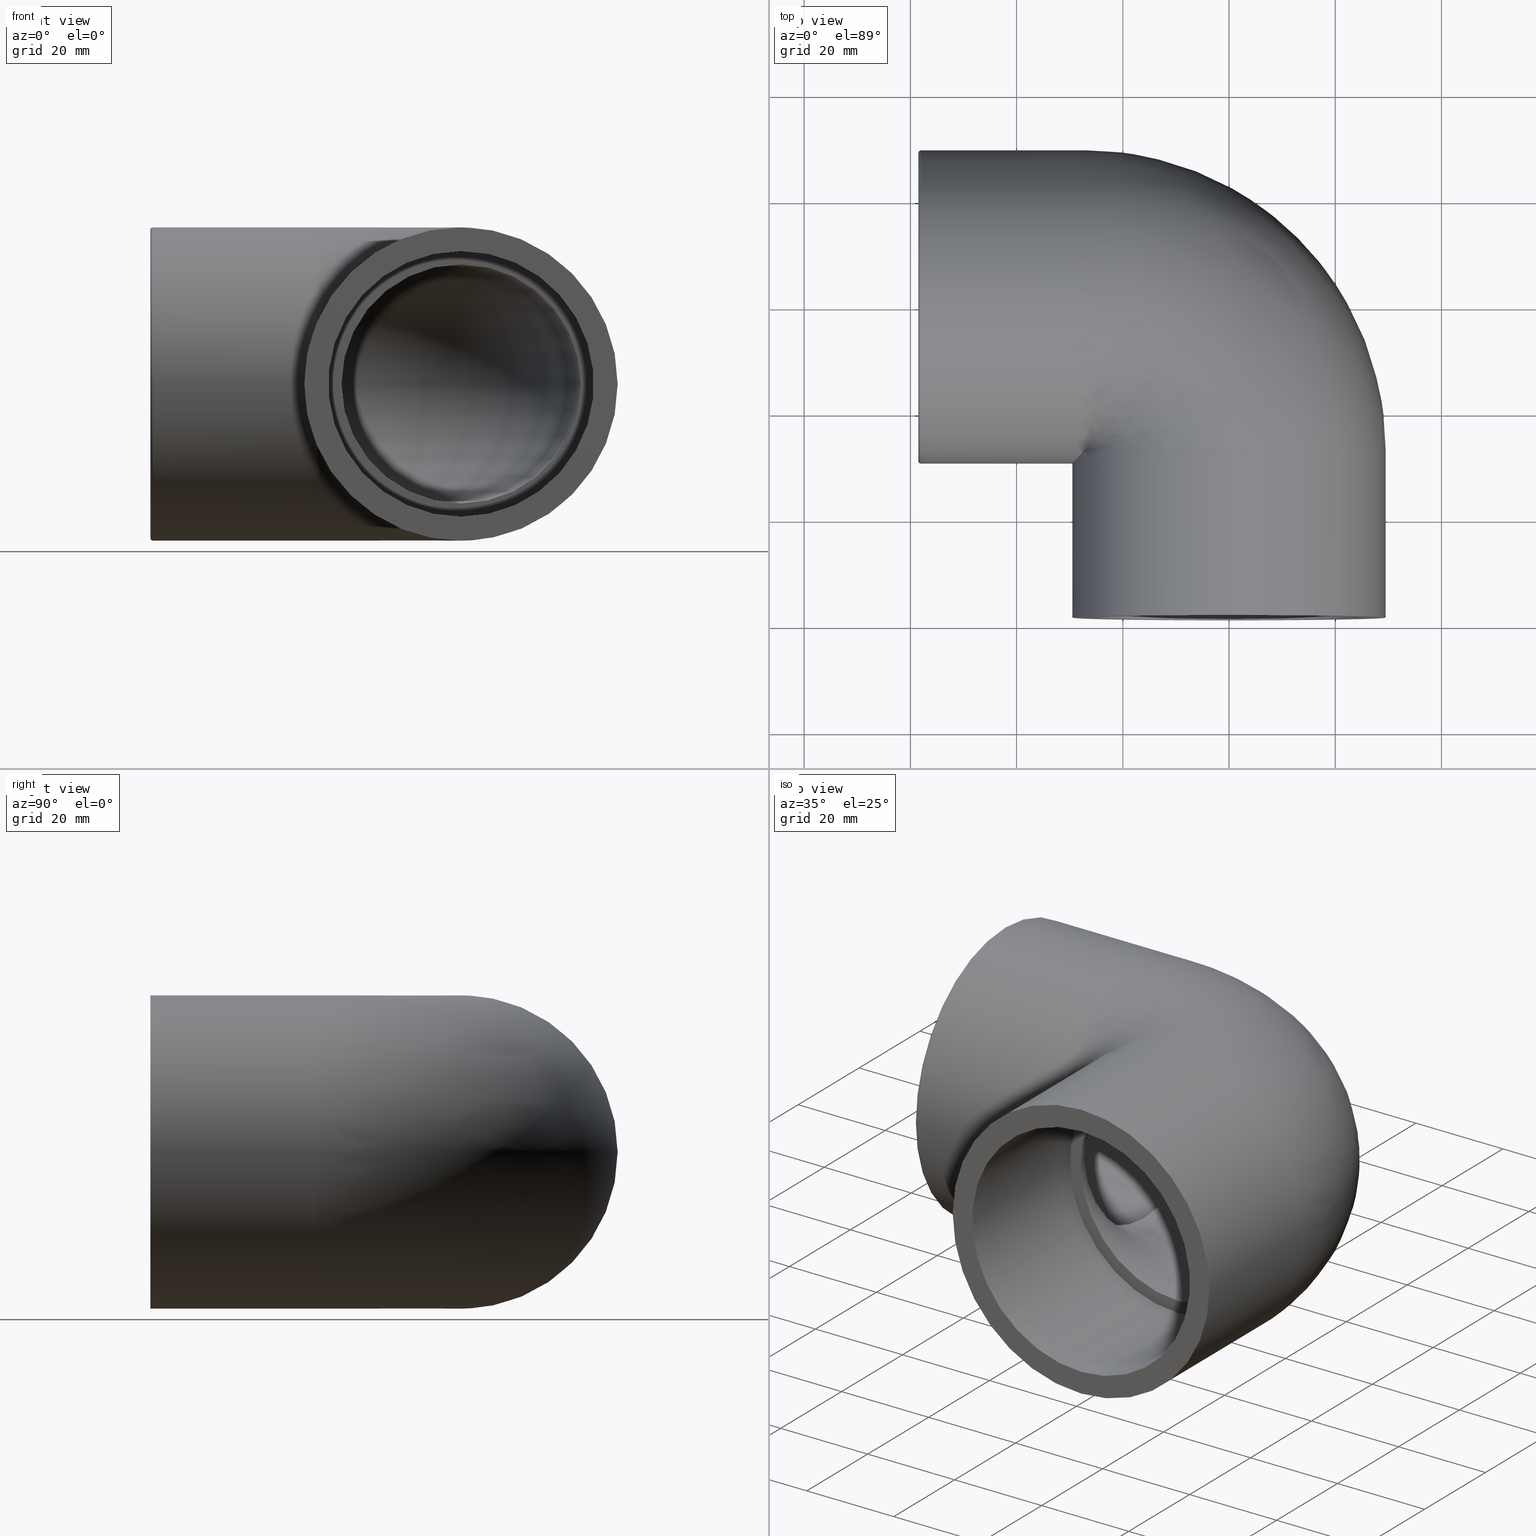
[diagram: canonical four-view strip — front | top / right | iso, engineering-drawing reading convention]
A machine part, canonical four-view strip (front | top / right | iso — engineering-drawing reading convention). The complete STEP part file that produces these views, byte-faithful:
ISO-10303-21;
HEADER;
/* Generated by software containing ST-Developer
 * from STEP Tools, Inc. (www.steptools.com) 
 */

FILE_DESCRIPTION(
/* description */ ('PLASSON 90\X\B0 ELBOW-CEMENT PVC 50'),
/* implementation_level */ '2;1');

FILE_NAME(
/* name */ 
'C:\\Dropbox\\KIMPROJECTS-Inventor\\99-16-3568-Processing\\PVC Catalog
 2017\\050500\\050500050.ipt.stp',
/* time_stamp */ '2017-12-07T15:55:38+02:00',
/* author */ ('KIM'),
/* organization */ (''),
/* preprocessor_version */ 'ST-DEVELOPER v15.6',
/* originating_system */ 'Autodesk Inventor 2015',
/* authorisation */ '');

FILE_SCHEMA (('AUTOMOTIVE_DESIGN { 1 0 10303 214 3 1 1 }'));
ENDSEC;

DATA;
#10=MECHANICAL_DESIGN_GEOMETRIC_PRESENTATION_REPRESENTATION('',(#13),#272);
#11=SHAPE_REPRESENTATION_RELATIONSHIP('SRR','None',#281,#12);
#12=ADVANCED_BREP_SHAPE_REPRESENTATION($,(#14),#271);
#13=STYLED_ITEM('',(#290),#14);
#14=MANIFOLD_SOLID_BREP('Solid1',#138);
#15=ELLIPSE('',#154,41.7193000900063,29.5);
#16=(
BOUNDED_SURFACE()
B_SPLINE_SURFACE(2,2,((#226,#227,#228),(#229,#230,#231),(#232,#233,#234),
(#235,#236,#237),(#238,#239,#240),(#241,#242,#243),(#244,#245,#246),(#247,
#248,#249),(#250,#251,#252)),.UNSPECIFIED.,.F.,.F.,.F.)
B_SPLINE_SURFACE_WITH_KNOTS((3,2,2,2,3),(3,3),(-2.72693485056769,-1.36346742528384,
0.,1.36346742528384,2.72693485056769),(1.5707963267949,3.14159265358979),
 .UNSPECIFIED.)
GEOMETRIC_REPRESENTATION_ITEM()
RATIONAL_B_SPLINE_SURFACE(((1.,0.707106781186548,1.),(0.776481404284146,
0.549055266434573,0.776481404284146),(1.,0.707106781186548,1.),(0.776481404284144,
0.549055266434571,0.776481404284144),(1.,0.707106781186548,1.),(0.776481404284144,
0.549055266434571,0.776481404284144),(1.,0.707106781186548,1.),(0.776481404284146,
0.549055266434573,0.776481404284146),(1.,0.707106781186548,1.)))
REPRESENTATION_ITEM('')
SURFACE()
);
#17=PLANE('',#146);
#18=PLANE('',#150);
#19=PLANE('',#156);
#20=PLANE('',#160);
#21=CYLINDRICAL_SURFACE('',#143,25.);
#22=CYLINDRICAL_SURFACE('',#147,25.);
#23=CYLINDRICAL_SURFACE('',#153,29.5);
#24=CYLINDRICAL_SURFACE('',#161,29.5);
#25=FACE_BOUND('',#47,.T.);
#26=FACE_BOUND('',#49,.T.);
#27=FACE_BOUND('',#51,.T.);
#28=FACE_BOUND('',#53,.T.);
#29=FACE_BOUND('',#55,.T.);
#30=FACE_BOUND('',#58,.T.);
#31=FACE_BOUND('',#60,.T.);
#32=FACE_BOUND('',#62,.T.);
#33=FACE_BOUND('',#64,.T.);
#34=FACE_BOUND('',#66,.T.);
#35=FACE_OUTER_BOUND('',#46,.T.);
#36=FACE_OUTER_BOUND('',#48,.T.);
#37=FACE_OUTER_BOUND('',#50,.T.);
#38=FACE_OUTER_BOUND('',#52,.T.);
#39=FACE_OUTER_BOUND('',#54,.T.);
#40=FACE_OUTER_BOUND('',#56,.T.);
#41=FACE_OUTER_BOUND('',#57,.T.);
#42=FACE_OUTER_BOUND('',#59,.T.);
#43=FACE_OUTER_BOUND('',#61,.T.);
#44=FACE_OUTER_BOUND('',#63,.T.);
#45=FACE_OUTER_BOUND('',#65,.T.);
#46=EDGE_LOOP('',(#101));
#47=EDGE_LOOP('',(#102));
#48=EDGE_LOOP('',(#103));
#49=EDGE_LOOP('',(#104));
#50=EDGE_LOOP('',(#105));
#51=EDGE_LOOP('',(#106));
#52=EDGE_LOOP('',(#107));
#53=EDGE_LOOP('',(#108));
#54=EDGE_LOOP('',(#109));
#55=EDGE_LOOP('',(#110));
#56=EDGE_LOOP('',(#111,#112));
#57=EDGE_LOOP('',(#113,#114));
#58=EDGE_LOOP('',(#115));
#59=EDGE_LOOP('',(#116));
#60=EDGE_LOOP('',(#117));
#61=EDGE_LOOP('',(#118));
#62=EDGE_LOOP('',(#119));
#63=EDGE_LOOP('',(#120));
#64=EDGE_LOOP('',(#121));
#65=EDGE_LOOP('',(#122,#123));
#66=EDGE_LOOP('',(#124));
#67=CIRCLE('',#141,22.5);
#68=CIRCLE('',#142,22.5);
#69=CIRCLE('',#144,25.);
#70=CIRCLE('',#145,25.);
#71=CIRCLE('',#148,25.);
#72=CIRCLE('',#149,25.);
#73=CIRCLE('',#151,29.5);
#74=CIRCLE('',#152,29.5);
#75=CIRCLE('',#155,29.5);
#76=CIRCLE('',#158,29.);
#77=CIRCLE('',#159,29.5);
#78=VERTEX_POINT('',#210);
#79=VERTEX_POINT('',#212);
#80=VERTEX_POINT('',#215);
#81=VERTEX_POINT('',#217);
#82=VERTEX_POINT('',#221);
#83=VERTEX_POINT('',#223);
#84=VERTEX_POINT('',#253);
#85=VERTEX_POINT('',#254);
#86=VERTEX_POINT('',#259);
#87=VERTEX_POINT('',#263);
#88=VERTEX_POINT('',#265);
#89=EDGE_CURVE('',#78,#78,#67,.T.);
#90=EDGE_CURVE('',#79,#79,#68,.T.);
#91=EDGE_CURVE('',#80,#80,#69,.T.);
#92=EDGE_CURVE('',#81,#81,#70,.T.);
#93=EDGE_CURVE('',#82,#82,#71,.T.);
#94=EDGE_CURVE('',#83,#83,#72,.T.);
#95=EDGE_CURVE('',#84,#85,#73,.T.);
#96=EDGE_CURVE('',#85,#84,#74,.T.);
#97=EDGE_CURVE('',#84,#85,#15,.T.);
#98=EDGE_CURVE('',#86,#86,#75,.T.);
#99=EDGE_CURVE('',#87,#87,#76,.T.);
#100=EDGE_CURVE('',#88,#88,#77,.T.);
#101=ORIENTED_EDGE('',*,*,#89,.F.);
#102=ORIENTED_EDGE('',*,*,#90,.F.);
#103=ORIENTED_EDGE('',*,*,#91,.T.);
#104=ORIENTED_EDGE('',*,*,#92,.F.);
#105=ORIENTED_EDGE('',*,*,#91,.F.);
#106=ORIENTED_EDGE('',*,*,#89,.T.);
#107=ORIENTED_EDGE('',*,*,#93,.T.);
#108=ORIENTED_EDGE('',*,*,#94,.F.);
#109=ORIENTED_EDGE('',*,*,#93,.F.);
#110=ORIENTED_EDGE('',*,*,#90,.T.);
#111=ORIENTED_EDGE('',*,*,#95,.T.);
#112=ORIENTED_EDGE('',*,*,#96,.T.);
#113=ORIENTED_EDGE('',*,*,#97,.F.);
#114=ORIENTED_EDGE('',*,*,#96,.F.);
#115=ORIENTED_EDGE('',*,*,#98,.T.);
#116=ORIENTED_EDGE('',*,*,#98,.F.);
#117=ORIENTED_EDGE('',*,*,#92,.T.);
#118=ORIENTED_EDGE('',*,*,#99,.T.);
#119=ORIENTED_EDGE('',*,*,#100,.T.);
#120=ORIENTED_EDGE('',*,*,#99,.F.);
#121=ORIENTED_EDGE('',*,*,#94,.T.);
#122=ORIENTED_EDGE('',*,*,#97,.T.);
#123=ORIENTED_EDGE('',*,*,#95,.F.);
#124=ORIENTED_EDGE('',*,*,#100,.F.);
#125=TOROIDAL_SURFACE('',#140,26.5,22.5);
#126=TOROIDAL_SURFACE('',#157,29.,0.5);
#127=ADVANCED_FACE('',(#35,#25),#125,.F.);
#128=ADVANCED_FACE('',(#36,#26),#21,.F.);
#129=ADVANCED_FACE('',(#37,#27),#17,.F.);
#130=ADVANCED_FACE('',(#38,#28),#22,.F.);
#131=ADVANCED_FACE('',(#39,#29),#18,.F.);
#132=ADVANCED_FACE('',(#40),#16,.F.);
#133=ADVANCED_FACE('',(#41,#30),#23,.T.);
#134=ADVANCED_FACE('',(#42,#31),#19,.T.);
#135=ADVANCED_FACE('',(#43,#32),#126,.T.);
#136=ADVANCED_FACE('',(#44,#33),#20,.T.);
#137=ADVANCED_FACE('',(#45,#34),#24,.T.);
#138=CLOSED_SHELL('',(#127,#128,#129,#130,#131,#132,#133,#134,#135,#136,
#137));
#139=AXIS2_PLACEMENT_3D('placement',#208,#162,#163);
#140=AXIS2_PLACEMENT_3D('',#209,#164,#165);
#141=AXIS2_PLACEMENT_3D('',#211,#166,#167);
#142=AXIS2_PLACEMENT_3D('',#213,#168,#169);
#143=AXIS2_PLACEMENT_3D('',#214,#170,#171);
#144=AXIS2_PLACEMENT_3D('',#216,#172,#173);
#145=AXIS2_PLACEMENT_3D('',#218,#174,#175);
#146=AXIS2_PLACEMENT_3D('',#219,#176,#177);
#147=AXIS2_PLACEMENT_3D('',#220,#178,#179);
#148=AXIS2_PLACEMENT_3D('',#222,#180,#181);
#149=AXIS2_PLACEMENT_3D('',#224,#182,#183);
#150=AXIS2_PLACEMENT_3D('',#225,#184,#185);
#151=AXIS2_PLACEMENT_3D('',#255,#186,#187);
#152=AXIS2_PLACEMENT_3D('',#256,#188,#189);
#153=AXIS2_PLACEMENT_3D('',#257,#190,#191);
#154=AXIS2_PLACEMENT_3D('',#258,#192,#193);
#155=AXIS2_PLACEMENT_3D('',#260,#194,#195);
#156=AXIS2_PLACEMENT_3D('',#261,#196,#197);
#157=AXIS2_PLACEMENT_3D('',#262,#198,#199);
#158=AXIS2_PLACEMENT_3D('',#264,#200,#201);
#159=AXIS2_PLACEMENT_3D('',#266,#202,#203);
#160=AXIS2_PLACEMENT_3D('',#267,#204,#205);
#161=AXIS2_PLACEMENT_3D('',#268,#206,#207);
#162=DIRECTION('axis',(0.,0.,1.));
#163=DIRECTION('refdir',(1.,0.,0.));
#164=DIRECTION('center_axis',(0.,0.,-1.));
#165=DIRECTION('ref_axis',(-1.,0.,0.));
#166=DIRECTION('center_axis',(6.12323399573677E-17,1.,0.));
#167=DIRECTION('ref_axis',(1.,-6.12323399573677E-17,0.));
#168=DIRECTION('center_axis',(1.,0.,0.));
#169=DIRECTION('ref_axis',(0.,1.,0.));
#170=DIRECTION('center_axis',(6.12323399573677E-17,1.,0.));
#171=DIRECTION('ref_axis',(0.,0.,-1.));
#172=DIRECTION('center_axis',(6.12323399573677E-17,1.,0.));
#173=DIRECTION('ref_axis',(0.,0.,-1.));
#174=DIRECTION('center_axis',(6.12323399573677E-17,1.,0.));
#175=DIRECTION('ref_axis',(0.,0.,-1.));
#176=DIRECTION('center_axis',(6.12323399573677E-17,1.,0.));
#177=DIRECTION('ref_axis',(0.,0.,-1.));
#178=DIRECTION('center_axis',(1.,0.,0.));
#179=DIRECTION('ref_axis',(0.,0.,-1.));
#180=DIRECTION('center_axis',(1.,0.,0.));
#181=DIRECTION('ref_axis',(0.,0.,-1.));
#182=DIRECTION('center_axis',(1.,0.,0.));
#183=DIRECTION('ref_axis',(0.,0.,-1.));
#184=DIRECTION('center_axis',(1.,0.,0.));
#185=DIRECTION('ref_axis',(0.,0.,-1.));
#186=DIRECTION('center_axis',(1.,0.,0.));
#187=DIRECTION('ref_axis',(0.,0.,-1.));
#188=DIRECTION('center_axis',(6.12323399573677E-17,1.,0.));
#189=DIRECTION('ref_axis',(0.,0.,-1.));
#190=DIRECTION('center_axis',(6.12323399573677E-17,1.,0.));
#191=DIRECTION('ref_axis',(-1.,6.12323399573677E-17,0.));
#192=DIRECTION('center_axis',(-0.707106781186548,0.707106781186548,0.));
#193=DIRECTION('ref_axis',(-0.707106781186548,-0.707106781186547,0.));
#194=DIRECTION('center_axis',(6.12323399573677E-17,1.,0.));
#195=DIRECTION('ref_axis',(0.,0.,-1.));
#196=DIRECTION('center_axis',(-6.12323399573677E-17,-1.,0.));
#197=DIRECTION('ref_axis',(0.,0.,1.));
#198=DIRECTION('center_axis',(1.,0.,0.));
#199=DIRECTION('ref_axis',(0.,0.,-1.));
#200=DIRECTION('center_axis',(1.,0.,0.));
#201=DIRECTION('ref_axis',(0.,-1.,1.83697019872103E-16));
#202=DIRECTION('center_axis',(-1.,0.,0.));
#203=DIRECTION('ref_axis',(0.,-1.,1.83697019872103E-16));
#204=DIRECTION('center_axis',(-1.,0.,0.));
#205=DIRECTION('ref_axis',(0.,0.,1.));
#206=DIRECTION('center_axis',(1.,0.,0.));
#207=DIRECTION('ref_axis',(0.,1.,0.));
#208=CARTESIAN_POINT('',(0.,0.,0.));
#209=CARTESIAN_POINT('Origin',(-26.5,-26.5,0.));
#210=CARTESIAN_POINT('',(2.22044604925031E-15,-26.5,22.5));
#211=CARTESIAN_POINT('Origin',(0.,-26.5,0.));
#212=CARTESIAN_POINT('',(-26.5,2.75545529808154E-15,22.5));
#213=CARTESIAN_POINT('Origin',(-26.5,0.,0.));
#214=CARTESIAN_POINT('Origin',(-3.58209188750601E-15,-58.5,0.));
#215=CARTESIAN_POINT('',(-4.68427400673863E-15,-26.5,25.));
#216=CARTESIAN_POINT('Origin',(-1.62265700887024E-15,-26.5,0.));
#217=CARTESIAN_POINT('',(-6.64370888537439E-15,-58.5,25.));
#218=CARTESIAN_POINT('Origin',(-3.58209188750601E-15,-58.5,0.));
#219=CARTESIAN_POINT('Origin',(-1.03053806240349E-15,-26.5,-1.43937264275587E-15));
#220=CARTESIAN_POINT('Origin',(-58.5,0.,0.));
#221=CARTESIAN_POINT('',(-26.5,3.06161699786838E-15,25.));
#222=CARTESIAN_POINT('Origin',(-26.5,0.,0.));
#223=CARTESIAN_POINT('',(-58.5,3.06161699786838E-15,25.));
#224=CARTESIAN_POINT('Origin',(-58.5,0.,0.));
#225=CARTESIAN_POINT('Origin',(-26.5,-5.9211894646675E-16,-1.43937264275587E-15));
#226=CARTESIAN_POINT('Ctrl Pts',(-27.,-27.,11.8848643240047));
#227=CARTESIAN_POINT('Ctrl Pts',(-27.,-27.,11.8848643240047));
#228=CARTESIAN_POINT('Ctrl Pts',(-27.,-27.,11.8848643240047));
#229=CARTESIAN_POINT('Ctrl Pts',(-27.,-17.3550421985089,33.7962512394013));
#230=CARTESIAN_POINT('Ctrl Pts',(-17.3550421985089,-17.3550421985089,33.7962512394013));
#231=CARTESIAN_POINT('Ctrl Pts',(-17.3550421985089,-27.,33.7962512394013));
#232=CARTESIAN_POINT('Ctrl Pts',(-27.,6.07247890074555,28.8682351382969));
#233=CARTESIAN_POINT('Ctrl Pts',(6.07247890074555,6.07247890074555,28.8682351382969));
#234=CARTESIAN_POINT('Ctrl Pts',(6.07247890074555,-27.,28.8682351382969));
#235=CARTESIAN_POINT('Ctrl Pts',(-27.,29.5,23.9402190371925));
#236=CARTESIAN_POINT('Ctrl Pts',(29.5,29.5,23.9402190371925));
#237=CARTESIAN_POINT('Ctrl Pts',(29.5,-27.,23.9402190371925));
#238=CARTESIAN_POINT('Ctrl Pts',(-27.,29.5,0.));
#239=CARTESIAN_POINT('Ctrl Pts',(29.5,29.5,0.));
#240=CARTESIAN_POINT('Ctrl Pts',(29.5,-27.,0.));
#241=CARTESIAN_POINT('Ctrl Pts',(-27.,29.5,-23.9402190371925));
#242=CARTESIAN_POINT('Ctrl Pts',(29.5,29.5,-23.9402190371925));
#243=CARTESIAN_POINT('Ctrl Pts',(29.5,-27.,-23.9402190371925));
#244=CARTESIAN_POINT('Ctrl Pts',(-27.,6.07247890074555,-28.8682351382969));
#245=CARTESIAN_POINT('Ctrl Pts',(6.07247890074555,6.07247890074555,-28.8682351382969));
#246=CARTESIAN_POINT('Ctrl Pts',(6.07247890074555,-27.,-28.8682351382969));
#247=CARTESIAN_POINT('Ctrl Pts',(-27.,-17.3550421985089,-33.7962512394013));
#248=CARTESIAN_POINT('Ctrl Pts',(-17.3550421985089,-17.3550421985089,-33.7962512394013));
#249=CARTESIAN_POINT('Ctrl Pts',(-17.3550421985089,-27.,-33.7962512394013));
#250=CARTESIAN_POINT('Ctrl Pts',(-27.,-27.,-11.8848643240047));
#251=CARTESIAN_POINT('Ctrl Pts',(-27.,-27.,-11.8848643240047));
#252=CARTESIAN_POINT('Ctrl Pts',(-27.,-27.,-11.8848643240047));
#253=CARTESIAN_POINT('',(-27.,-27.,-11.8848643240047));
#254=CARTESIAN_POINT('',(-27.,-27.,11.8848643240047));
#255=CARTESIAN_POINT('Origin',(-27.,0.,0.));
#256=CARTESIAN_POINT('Origin',(-1.65327317884893E-15,-27.,0.));
#257=CARTESIAN_POINT('Origin',(-2.61768253317747E-15,-42.75,0.));
#258=CARTESIAN_POINT('Origin',(0.,0.,0.));
#259=CARTESIAN_POINT('',(-29.5,-58.5,0.));
#260=CARTESIAN_POINT('Origin',(-3.58209188750601E-15,-58.5,0.));
#261=CARTESIAN_POINT('Origin',(-29.5,-58.5,0.));
#262=CARTESIAN_POINT('Origin',(-58.,0.,0.));
#263=CARTESIAN_POINT('',(-58.5,29.,-1.77573785876366E-15));
#264=CARTESIAN_POINT('Origin',(-58.5,0.,0.));
#265=CARTESIAN_POINT('',(-58.,29.5,-9.03177014371173E-15));
#266=CARTESIAN_POINT('Origin',(-58.,0.,0.));
#267=CARTESIAN_POINT('Origin',(-58.5,29.5,0.));
#268=CARTESIAN_POINT('Origin',(-42.75,0.,0.));
#269=UNCERTAINTY_MEASURE_WITH_UNIT(LENGTH_MEASURE(0.01),#273,
'DISTANCE_ACCURACY_VALUE',
'Maximum model space distance between geometric entities at asserted c
onnectivities');
#270=UNCERTAINTY_MEASURE_WITH_UNIT(LENGTH_MEASURE(1.E-6),#273,
'DISTANCE_ACCURACY_VALUE',
'Maximum model space distance between geometric entities at asserted c
onnectivities');
#271=(
GEOMETRIC_REPRESENTATION_CONTEXT(3)
GLOBAL_UNCERTAINTY_ASSIGNED_CONTEXT((#269))
GLOBAL_UNIT_ASSIGNED_CONTEXT((#273,#276,#274))
REPRESENTATION_CONTEXT('','3D')
);
#272=(
GEOMETRIC_REPRESENTATION_CONTEXT(3)
GLOBAL_UNCERTAINTY_ASSIGNED_CONTEXT((#270))
GLOBAL_UNIT_ASSIGNED_CONTEXT((#273,#276,#274))
REPRESENTATION_CONTEXT('','3D')
);
#273=(
LENGTH_UNIT()
NAMED_UNIT(*)
SI_UNIT(.MILLI.,.METRE.)
);
#274=(
NAMED_UNIT(*)
SI_UNIT($,.STERADIAN.)
SOLID_ANGLE_UNIT()
);
#275=DIMENSIONAL_EXPONENTS(0.,0.,0.,0.,0.,0.,0.);
#276=(
CONVERSION_BASED_UNIT('degree',#278)
NAMED_UNIT(#275)
PLANE_ANGLE_UNIT()
);
#277=(
NAMED_UNIT(*)
PLANE_ANGLE_UNIT()
SI_UNIT($,.RADIAN.)
);
#278=PLANE_ANGLE_MEASURE_WITH_UNIT(PLANE_ANGLE_MEASURE(0.01745329252),#277);
#279=SHAPE_DEFINITION_REPRESENTATION(#280,#281);
#280=PRODUCT_DEFINITION_SHAPE('',$,#283);
#281=SHAPE_REPRESENTATION('',(#139),#271);
#282=PRODUCT_DEFINITION_CONTEXT('part definition',#287,'design');
#283=PRODUCT_DEFINITION('050500050','050500050',#284,#282);
#284=PRODUCT_DEFINITION_FORMATION('',$,#289);
#285=PRODUCT_RELATED_PRODUCT_CATEGORY('050500050','050500050',(#289));
#286=APPLICATION_PROTOCOL_DEFINITION('international standard',
'automotive_design',2009,#287);
#287=APPLICATION_CONTEXT(
'Core Data for Automotive Mechanical Design Process');
#288=PRODUCT_CONTEXT('part definition',#287,'mechanical');
#289=PRODUCT('050500050','050500050',$,(#288));
#290=PRESENTATION_STYLE_ASSIGNMENT((#291));
#291=SURFACE_STYLE_USAGE(.BOTH.,#292);
#292=SURFACE_SIDE_STYLE($,(#293));
#293=SURFACE_STYLE_FILL_AREA(#294);
#294=FILL_AREA_STYLE($,(#295));
#295=FILL_AREA_STYLE_COLOUR($,#296);
#296=COLOUR_RGB('',0.749019607843137,0.749019607843137,0.749019607843137);
ENDSEC;
END-ISO-10303-21;
